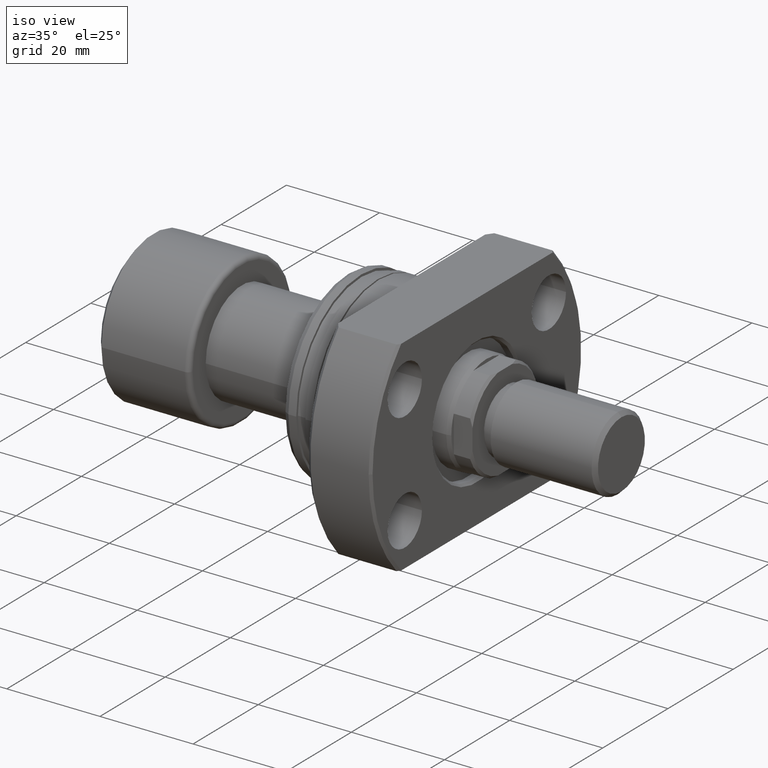
[diagram: clean part render]
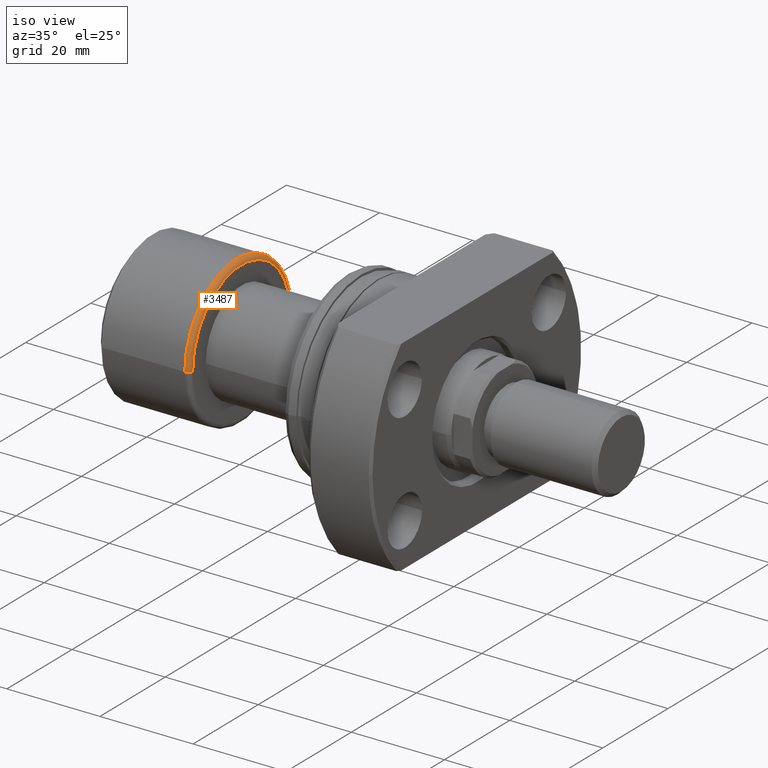
[diagram: same view with one face highlighted and labeled with its STEP entity id]
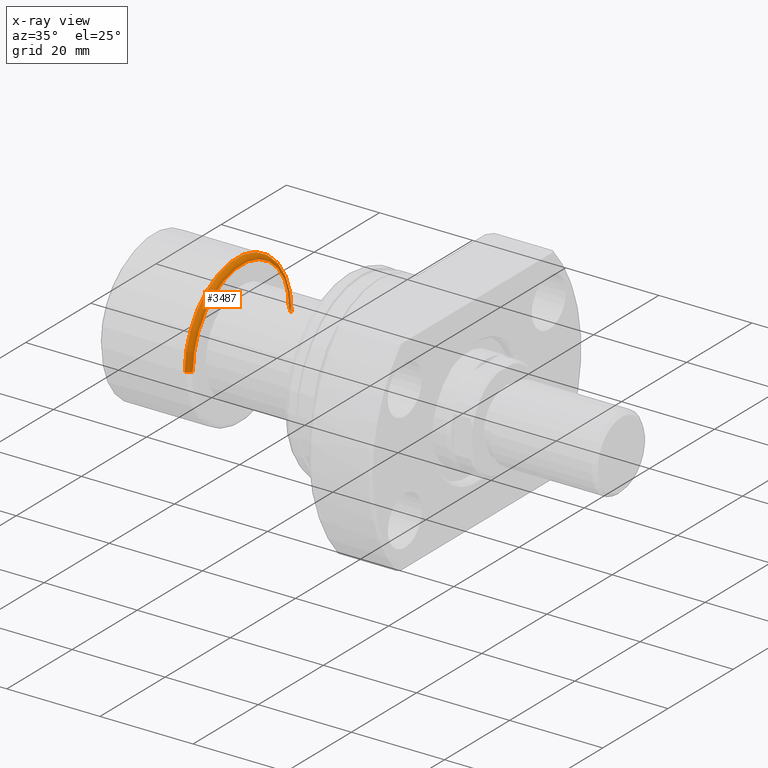
[diagram: x-ray of the same camera — body ghosted, the highlighted face saturated]
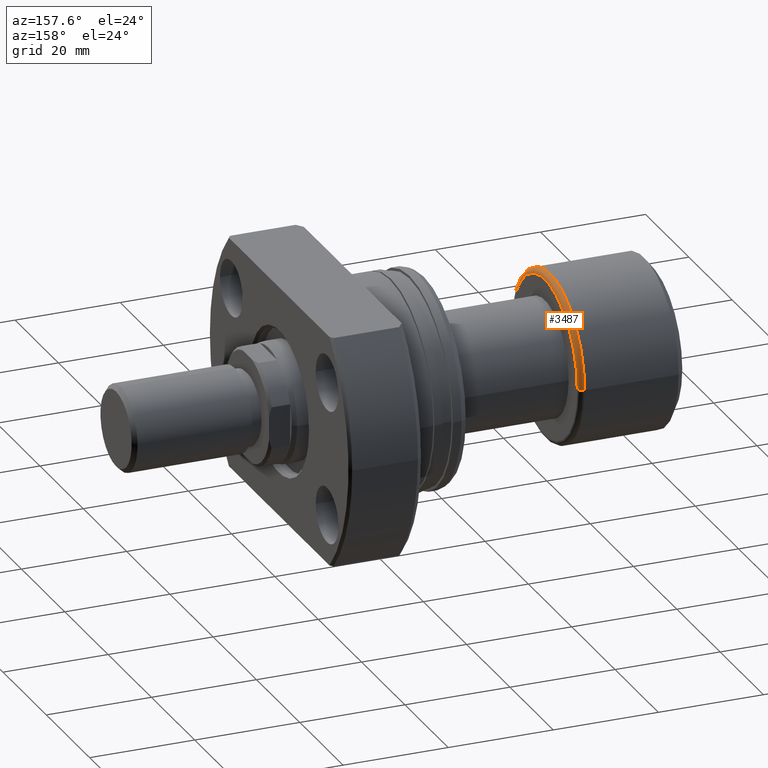
[diagram: same view with one face highlighted and labeled with its STEP entity id]
A machine part, iso view. The second image highlights one B-rep face of the part: STEP entity #3487.
The next image is the same camera in x-ray: the body ghosted, the highlighted face saturated — about 3% of this face is hidden behind the body in this view.
A second angle (auxiliary view) of the same face is appended — the face is thin or edge-on in the first view.
In plain terms, the highlighted toroidal blend (fillet) surface has major radius 15 mm and minor (blend) radius 1 mm.
Its self-contained STEP definition (entity closure, byte-faithful):
#9 = EDGE_CURVE ( 'NONE', #1414, #2798, #1388, .T. ) ;
#101 = DIRECTION ( 'NONE',  ( 0.000000000000000000, 0.000000000000000000, -1.000000000000000000 ) ) ;
#321 = EDGE_CURVE ( 'NONE', #2798, #1762, #3644, .T. ) ;
#327 = DIRECTION ( 'NONE',  ( -1.000000000000000000, 0.000000000000000000, 0.000000000000000000 ) ) ;
#402 = FACE_OUTER_BOUND ( 'NONE', #2981, .T. ) ;
#559 = CARTESIAN_POINT ( 'NONE',  ( 19.40000000000000213, 2.074912104813987675E-16, 0.000000000000000000 ) ) ;
#567 = EDGE_CURVE ( 'NONE', #766, #1762, #1335, .T. ) ;
#615 = DIRECTION ( 'NONE',  ( 0.000000000000000000, -1.000000000000000000, -1.224646799147353454E-16 ) ) ;
#622 = DIRECTION ( 'NONE',  ( 1.069542322069065801E-17, -1.000000000000000000, 0.000000000000000000 ) ) ;
#651 = ORIENTED_EDGE ( 'NONE', *, *, #321, .F. ) ;
#766 = VERTEX_POINT ( 'NONE', #1693 ) ;
#869 = AXIS2_PLACEMENT_3D ( 'NONE', #3452, #902, #622 ) ;
#902 = DIRECTION ( 'NONE',  ( -1.000000000000000000, -1.069542322069065801E-17, -0.000000000000000000 ) ) ;
#914 = AXIS2_PLACEMENT_3D ( 'NONE', #559, #3130, #2840 ) ;
#1034 = AXIS2_PLACEMENT_3D ( 'NONE', #3508, #3166, #615 ) ;
#1140 = CARTESIAN_POINT ( 'NONE',  ( 19.40000000000000213, 16.00000000000000000, 1.959434878635765131E-15 ) ) ;
#1335 = CIRCLE ( 'NONE', #1034, 1.000000000000000888 ) ;
#1388 = CIRCLE ( 'NONE', #3230, 1.000000000000000888 ) ;
#1414 = VERTEX_POINT ( 'NONE', #2923 ) ;
#1467 = ORIENTED_EDGE ( 'NONE', *, *, #3164, .T. ) ;
#1490 = ORIENTED_EDGE ( 'NONE', *, *, #9, .F. ) ;
#1693 = CARTESIAN_POINT ( 'NONE',  ( 20.39999999999999858, 15.00000000000000000, 1.898202538678397163E-15 ) ) ;
#1762 = VERTEX_POINT ( 'NONE', #1140 ) ;
#1904 = CARTESIAN_POINT ( 'NONE',  ( 20.39999999999999858, 2.181866337020894116E-16, 0.000000000000000000 ) ) ;
#2121 = CIRCLE ( 'NONE', #2772, 15.00000000000000000 ) ;
#2169 = DIRECTION ( 'NONE',  ( 0.000000000000000000, -1.000000000000000000, 0.000000000000000000 ) ) ;
#2473 = TOROIDAL_SURFACE ( 'NONE', #869, 15.00000000000000000, 1.000000000000000888 ) ;
#2656 = ORIENTED_EDGE ( 'NONE', *, *, #567, .T. ) ;
#2772 = AXIS2_PLACEMENT_3D ( 'NONE', #1904, #3548, #2169 ) ;
#2798 = VERTEX_POINT ( 'NONE', #2867 ) ;
#2840 = DIRECTION ( 'NONE',  ( 0.000000000000000000, -1.000000000000000000, 0.000000000000000000 ) ) ;
#2867 = CARTESIAN_POINT ( 'NONE',  ( 19.40000000000000213, -16.00000000000000000, 0.000000000000000000 ) ) ;
#2923 = CARTESIAN_POINT ( 'NONE',  ( 20.39999999999999858, -15.00000000000000000, 0.000000000000000000 ) ) ;
#2981 = EDGE_LOOP ( 'NONE', ( #1467, #2656, #651, #1490 ) ) ;
#3130 = DIRECTION ( 'NONE',  ( -1.000000000000000000, -1.069542322069065801E-17, -0.000000000000000000 ) ) ;
#3164 = EDGE_CURVE ( 'NONE', #1414, #766, #2121, .T. ) ;
#3166 = DIRECTION ( 'NONE',  ( 1.309811581274509052E-33, -1.224646799147353207E-16, 1.000000000000000000 ) ) ;
#3230 = AXIS2_PLACEMENT_3D ( 'NONE', #3454, #101, #327 ) ;
#3452 = CARTESIAN_POINT ( 'NONE',  ( 19.39999999999999858, 0.000000000000000000, 0.000000000000000000 ) ) ;
#3454 = CARTESIAN_POINT ( 'NONE',  ( 19.39999999999999858, -15.00000000000000000, 0.000000000000000000 ) ) ;
#3487 = ADVANCED_FACE ( 'NONE', ( #402 ), #2473, .T. ) ;
#3508 = CARTESIAN_POINT ( 'NONE',  ( 19.39999999999999858, 15.00000000000000000, 1.836970198721029589E-15 ) ) ;
#3548 = DIRECTION ( 'NONE',  ( -1.000000000000000000, -1.069542322069065801E-17, -0.000000000000000000 ) ) ;
#3644 = CIRCLE ( 'NONE', #914, 16.00000000000000000 ) ;